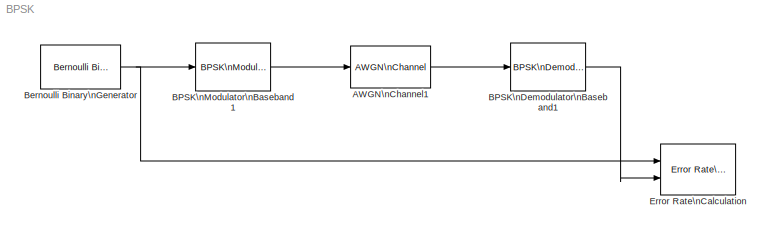
MODEL BPSK
KIND model
BLOCK [Reference] AWGN\nChannel1  REF=commchan2/AWGN\nChannel
  EbNodB = ebn0
  EsNodB = 10
  Ports = [1, 1]
  Ps = 1
  SNRdB = 10
  ShowPortLabels = on
  SourceBlock = commchan2/AWGN\nChannel
  SourceType = AWGN Channel
  Tsym = 1e-6
  bitsPerSym = 1
  noiseMode = Signal to noise ratio  (Eb/No)
  seed = 67
  variance = 1
BLOCK [Reference] BPSK\nDemodulator\nBaseband1  REF=commdigbbndpm2/BPSK\nDemodulator\nBaseband
  Ph = 0
  Ports = [1, 1]
  ShowPortLabels = on
  SourceBlock = commdigbbndpm2/BPSK\nDemodulator\nBaseband
  SourceType = BPSK Demodulator Baseband
  numSamp = 1
BLOCK [Reference] BPSK\nModulator\nBaseband1  REF=commdigbbndpm2/BPSK\nModulator\nBaseband
  Ph = 0
  Ports = [1, 1]
  ShowPortLabels = on
  SourceBlock = commdigbbndpm2/BPSK\nModulator\nBaseband
  SourceType = BPSK Modulator Baseband
  numSamp = 1
BLOCK [Reference] Bernoulli Binary\nGenerator  REF=commrandsrc2/Bernoulli Binary\nGenerator
  P = 0.5
  Ports = [0, 1]
  ShowPortLabels = on
  SourceBlock = commrandsrc2/Bernoulli Binary\nGenerator
  SourceType = Bernoulli Binary Generator
  Ts = 1e-6
  frameBased = on
  orient = off
  sampPerFrame = 10
  seed = 66
BLOCK [Reference] Error Rate\nCalculation  REF=commsink2/Error Rate\nCalculation
  N = 0
  PMode = Workspace
  Ports = [2]
  RsMode2 = off
  SourceBlock = commsink2/Error Rate\nCalculation
  SourceType = Error Rate Calculation
  WsName = ErrorVec
  cp_mode = Entire frame
  maxBits = 1e6
  numErr = 100
  st_delay = 0
  stop = off
  subframe = []
LINE AWGN\nChannel1:1 -> BPSK\nDemodulator\nBaseband1:1
LINE BPSK\nDemodulator\nBaseband1:1 -> Error Rate\nCalculation:2
LINE BPSK\nModulator\nBaseband1:1 -> AWGN\nChannel1:1
NET Bernoulli Binary\nGenerator:1 -> BPSK\nModulator\nBaseband1:1, Error Rate\nCalculation:1
note: NET lines group one-source signal fan-out (src -> all destinations, sorted); 1:1 wires keep LINE
